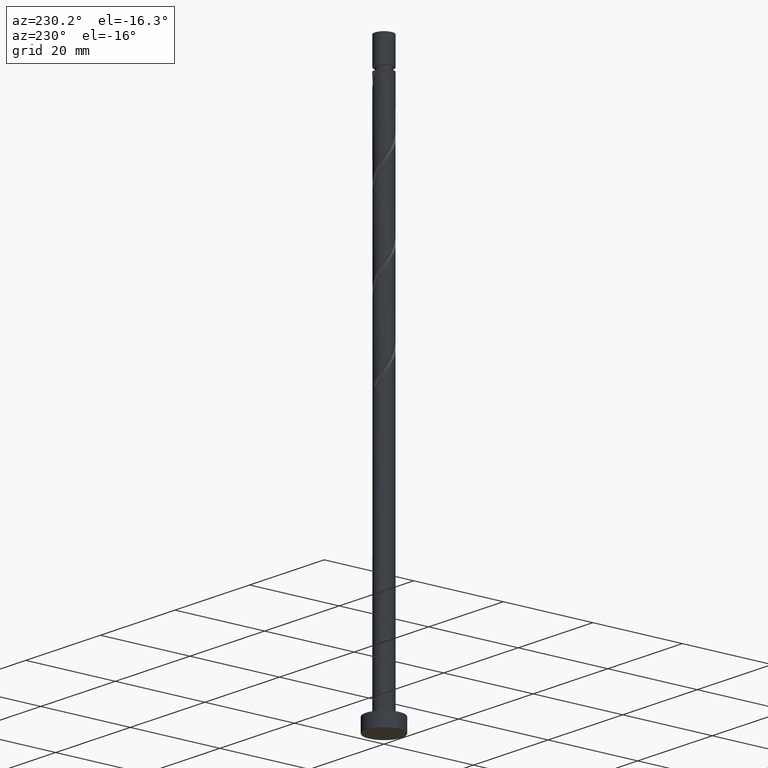
[diagram: clean part render]
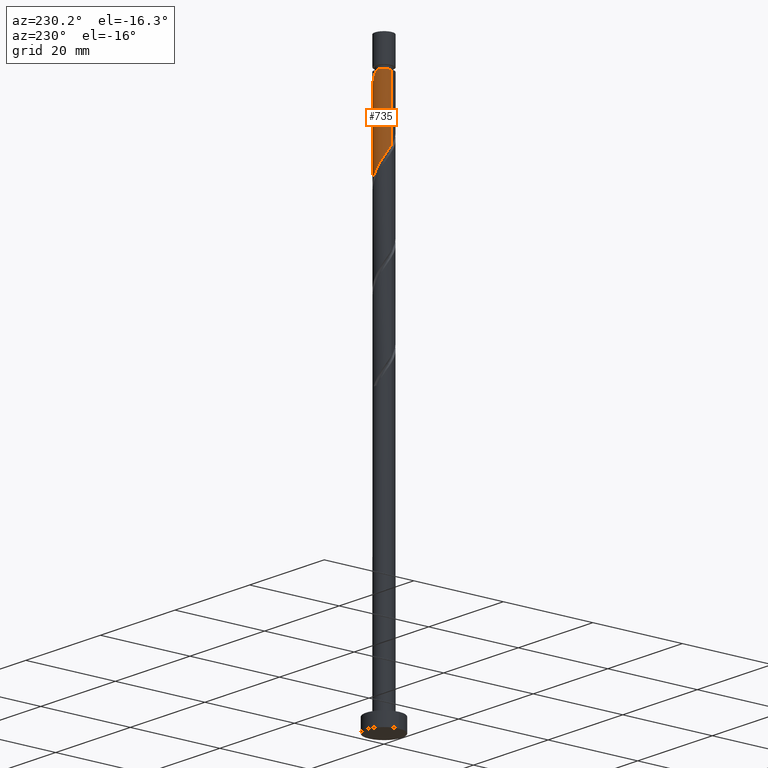
[diagram: same view with one face highlighted and labeled with its STEP entity id]
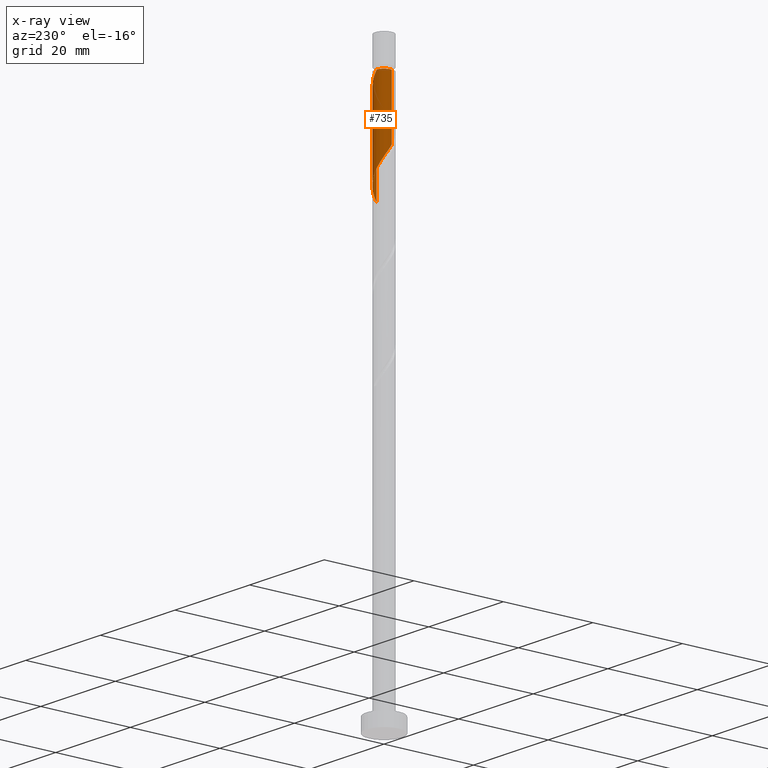
[diagram: x-ray of the same camera — body ghosted, the highlighted face saturated]
A machine part, auxiliary view. The second image highlights one B-rep face of the part: STEP entity #735.
The next image is the same camera in x-ray: the body ghosted, the highlighted face saturated — about 0% of this face is hidden behind the body in this view.
In plain terms, the highlighted cylindrical surface (edge-blend (fillet) strip) has radius 2 mm, axis along (-0, -0, -1).
Its self-contained STEP definition (entity closure, byte-faithful):
#55 = CARTESIAN_POINT ( 'NONE',  ( -1.999999999999999556, -5.097654946289978495E-16, 104.7584045842096003 ) ) ;
#63 = VECTOR ( 'NONE', #172, 1000.000000000000000 ) ;
#84 = CARTESIAN_POINT ( 'NONE',  ( 0.2271575946980709526, 1.987057982840712000, 117.3407565104538435 ) ) ;
#92 = CARTESIAN_POINT ( 'NONE',  ( 2.000000000000001332, 0.2010075630518468603, 113.2753197728667089 ) ) ;
#99 = CARTESIAN_POINT ( 'NONE',  ( -0.3979949748426346856, 1.960000000000000853, 118.2824231771204495 ) ) ;
#139 = AXIS2_PLACEMENT_3D ( 'NONE', #1508, #895, #1230 ) ;
#142 = CARTESIAN_POINT ( 'NONE',  ( 1.474043792816780218, 1.351737732275873238, 97.56575651045380937 ) ) ;
#157 = CARTESIAN_POINT ( 'NONE',  ( -1.741083561036292249, 0.9841890232517239712, 103.2157565104538151 ) ) ;
#163 = EDGE_CURVE ( 'NONE', #1381, #1471, #496, .T. ) ;
#169 = CARTESIAN_POINT ( 'NONE',  ( 1.999999999999999112, 0.1139474748928688552, 95.51305594218626993 ) ) ;
#172 = DIRECTION ( 'NONE',  ( -0.000000000000000000, -0.000000000000000000, -1.000000000000000000 ) ) ;
#215 = VECTOR ( 'NONE', #1367, 1000.000000000000000 ) ;
#261 = CARTESIAN_POINT ( 'NONE',  ( 0.3979949748426495071, 1.959999999999999520, 99.44908984378716355 ) ) ;
#280 = CARTESIAN_POINT ( 'NONE',  ( -1.585203333415016180, 1.259949568624707750, 102.7449231771204836 ) ) ;
#287 = ORIENTED_EDGE ( 'NONE', *, *, #967, .T. ) ;
#288 = CARTESIAN_POINT ( 'NONE',  ( -1.959999999999999520, 0.3979949748426490630, 104.1574231771204779 ) ) ;
#296 = CARTESIAN_POINT ( 'NONE',  ( -0.8300743961697145679, 1.819608885673919207, 101.3324231771204609 ) ) ;
#316 = VERTEX_POINT ( 'NONE', #886 ) ;
#324 = CARTESIAN_POINT ( 'NONE',  ( 1.351737732275876347, 1.474043792816781329, 115.4574231771204893 ) ) ;
#372 = EDGE_CURVE ( 'NONE', #316, #1471, #956, .T. ) ;
#383 = EDGE_LOOP ( 'NONE', ( #1567, #287, #407, #1031, #1463 ) ) ;
#392 = CARTESIAN_POINT ( 'NONE',  ( 1.951079754338987504, 0.5418766612026971741, 96.15325651045380084 ) ) ;
#399 = EDGE_CURVE ( 'NONE', #316, #1138, #515, .T. ) ;
#400 = CARTESIAN_POINT ( 'NONE',  ( 0.08756147180655798890, 2.023036211342430502, 99.91992317712048077 ) ) ;
#407 = ORIENTED_EDGE ( 'NONE', *, *, #802, .F. ) ;
#408 = CARTESIAN_POINT ( 'NONE',  ( 1.688138017008852021, 1.118272131136731184, 97.09492317712046372 ) ) ;
#482 = CARTESIAN_POINT ( 'NONE',  ( 0.000000000000000000, 0.000000000000000000, 125.0000000000000000 ) ) ;
#496 =( BOUNDED_CURVE ( )  B_SPLINE_CURVE ( 2, ( #920, #92, #556, #1051, #1541, #1532, #324, #805, #681, #1175, #84, #1182, #99 ),
 .UNSPECIFIED., .F., .T. ) 
 B_SPLINE_CURVE_WITH_KNOTS ( ( 3, 2, 2, 2, 2, 2, 3 ),
 ( 0.6795322023138553602, 0.6875000000000000000, 0.7000000000000000666, 0.7125000000000001332, 0.7250000000000000888, 0.7375000000000002665, 0.7500000000000002220 ),
 .UNSPECIFIED. ) 
 CURVE ( )  GEOMETRIC_REPRESENTATION_ITEM ( )  RATIONAL_B_SPLINE_CURVE ( ( 0.9039174447099401766, 0.9019565955404696966, 0.9090909090909180534, 0.8978984914501340064, 0.9090909090909180534, 0.8978984914501340064, 0.9090909090909180534, 0.8978984914501340064, 0.9090909090909180534, 0.8978984914501340064, 0.9090909090909180534, 0.8978984914501338954, 0.9090909090909181645 ) ) 
 REPRESENTATION_ITEM ( '' )  );
#515 = LINE ( 'NONE', #765, #63 ) ;
#552 = CARTESIAN_POINT ( 'NONE',  ( 1.999999999999999556, 2.009075772949579986E-15, 95.34173791754292893 ) ) ;
#556 = CARTESIAN_POINT ( 'NONE',  ( 1.960000000000002629, 0.3979949748426488410, 113.5740898437871493 ) ) ;
#612 = DIRECTION ( 'NONE',  ( -0.000000000000000000, -0.000000000000000000, -1.000000000000000000 ) ) ;
#626 = CARTESIAN_POINT ( 'NONE',  ( -1.896963788657569427, 0.7084284778787400816, 103.6865898437871465 ) ) ;
#634 = CARTESIAN_POINT ( 'NONE',  ( -1.999999999999999556, 0.2010075630518427248, 104.4561932480409041 ) ) ;
#640 = CARTESIAN_POINT ( 'NONE',  ( 1.987057982840708892, 0.2271575946980694816, 95.68242317712046940 ) ) ;
#663 = VERTEX_POINT ( 'NONE', #552 ) ;
#681 = CARTESIAN_POINT ( 'NONE',  ( 0.8300743961697165663, 1.819608885673922094, 116.3990898437871380 ) ) ;
#704 = CARTESIAN_POINT ( 'NONE',  ( 2.000000000000002665, 1.499310278320571585E-15, 112.9731084366980269 ) ) ;
#735 = ADVANCED_FACE ( 'NONE', ( #1071 ), #984, .T. ) ;
#736 = CARTESIAN_POINT ( 'NONE',  ( -1.999999999999999556, -5.097654946289978495E-16, 104.7584045842096003 ) ) ;
#746 = CARTESIAN_POINT ( 'NONE',  ( 1.819608885673919429, 0.8300743961697141238, 96.62408984378713228 ) ) ;
#755 = CARTESIAN_POINT ( 'NONE',  ( -0.5418766612026972851, 1.951079754338987282, 100.8615898437871579 ) ) ;
#762 = CARTESIAN_POINT ( 'NONE',  ( 1.999999999999999556, 2.009075772949579591E-15, 95.34173791754292893 ) ) ;
#765 = CARTESIAN_POINT ( 'NONE',  ( -2.000000000000000000, 0.000000000000000000, 125.0000000000000000 ) ) ;
#773 = LINE ( 'NONE', #1023, #215 ) ;
#802 = EDGE_CURVE ( 'NONE', #1138, #663, #878, .T. ) ;
#805 = CARTESIAN_POINT ( 'NONE',  ( 1.118272131136733405, 1.688138017008854019, 115.9282565104537923 ) ) ;
#835 = DIRECTION ( 'NONE',  ( -1.000000000000000000, 0.000000000000000000, 0.000000000000000000 ) ) ;
#875 = AXIS2_PLACEMENT_3D ( 'NONE', #482, #612, #835 ) ;
#878 =( BOUNDED_CURVE ( )  B_SPLINE_CURVE ( 2, ( #736, #634, #288, #626, #157, #280, #1139, #1375, #296, #755, #1006, #400, #261, #1359, #1252, #1227, #142, #408, #746, #392, #640, #169, #762 ),
 .UNSPECIFIED., .F., .T. ) 
 B_SPLINE_CURVE_WITH_KNOTS ( ( 3, 2, 2, 2, 2, 2, 2, 2, 2, 2, 2, 3 ),
 ( 0.4295322023138551382, 0.4375000000000000000, 0.4500000000000000111, 0.4625000000000000222, 0.4749999999999999778, 0.4874999999999999889, 0.5000000000000000000, 0.5124999999999999556, 0.5250000000000000222, 0.5374999999999999778, 0.5500000000000000444, 0.5545322023138550271 ),
 .UNSPECIFIED. ) 
 CURVE ( )  GEOMETRIC_REPRESENTATION_ITEM ( )  RATIONAL_B_SPLINE_CURVE ( ( 0.9039174447099341814, 0.9019565955404633684, 0.9090909090909118362, 0.8978984914501279002, 0.9090909090909118362, 0.8978984914501279002, 0.9090909090909118362, 0.8978984914501279002, 0.9090909090909118362, 0.8978984914501279002, 0.9090909090909118362, 0.8978984914501279002, 0.9090909090909118362, 0.8978984914501279002, 0.9090909090909118362, 0.8978984914501279002, 0.9090909090909118362, 0.8978984914501279002, 0.9090909090909118362, 0.8978984914501279002, 0.9090909090909118362, 0.9050328050005764791, 0.9039174447099341814 ) ) 
 REPRESENTATION_ITEM ( '' )  );
#886 = CARTESIAN_POINT ( 'NONE',  ( -1.999999999999998224, 0.000000000000000000, 118.2824231771204637 ) ) ;
#895 = DIRECTION ( 'NONE',  ( -0.000000000000000000, -0.000000000000000000, -1.000000000000000000 ) ) ;
#920 = CARTESIAN_POINT ( 'NONE',  ( 2.000000000000002665, 1.499310278320571585E-15, 112.9731084366980269 ) ) ;
#956 = CIRCLE ( 'NONE', #139, 1.999999999999998224 ) ;
#967 = EDGE_CURVE ( 'NONE', #1381, #663, #773, .T. ) ;
#980 = CARTESIAN_POINT ( 'NONE',  ( -0.3979949748426346856, 1.960000000000000853, 118.2824231771204495 ) ) ;
#984 = CYLINDRICAL_SURFACE ( 'NONE', #875, 2.000000000000000000 ) ;
#1006 = CARTESIAN_POINT ( 'NONE',  ( -0.2271575946980697869, 1.987057982840708892, 100.3907565104538122 ) ) ;
#1023 = CARTESIAN_POINT ( 'NONE',  ( 2.000000000000000000, 2.449293598294705921E-16, 125.0000000000000000 ) ) ;
#1031 = ORIENTED_EDGE ( 'NONE', *, *, #399, .F. ) ;
#1051 = CARTESIAN_POINT ( 'NONE',  ( 1.896963788657571426, 0.7084284778787407477, 114.0449231771204808 ) ) ;
#1071 = FACE_OUTER_BOUND ( 'NONE', #383, .T. ) ;
#1138 = VERTEX_POINT ( 'NONE', #55 ) ;
#1139 = CARTESIAN_POINT ( 'NONE',  ( -1.351737732275873904, 1.474043792816779774, 102.2740898437871806 ) ) ;
#1175 = CARTESIAN_POINT ( 'NONE',  ( 0.5418766612026988394, 1.951079754338989725, 116.8699231771204552 ) ) ;
#1182 = CARTESIAN_POINT ( 'NONE',  ( -0.08756147180656283224, 2.023036211342433610, 117.8115898437871181 ) ) ;
#1227 = CARTESIAN_POINT ( 'NONE',  ( 1.259949568624707972, 1.585203333415015958, 98.03658984378714081 ) ) ;
#1230 = DIRECTION ( 'NONE',  ( -1.000000000000000000, 0.000000000000000000, 0.000000000000000000 ) ) ;
#1252 = CARTESIAN_POINT ( 'NONE',  ( 0.9841890232517244153, 1.741083561036292027, 98.50742317712050067 ) ) ;
#1359 = CARTESIAN_POINT ( 'NONE',  ( 0.7084284778787406367, 1.896963788657568983, 98.97825651045383211 ) ) ;
#1367 = DIRECTION ( 'NONE',  ( -0.000000000000000000, -0.000000000000000000, -1.000000000000000000 ) ) ;
#1375 = CARTESIAN_POINT ( 'NONE',  ( -1.118272131136731629, 1.688138017008852021, 101.8032565104538207 ) ) ;
#1381 = VERTEX_POINT ( 'NONE', #704 ) ;
#1463 = ORIENTED_EDGE ( 'NONE', *, *, #372, .T. ) ;
#1471 = VERTEX_POINT ( 'NONE', #980 ) ;
#1508 = CARTESIAN_POINT ( 'NONE',  ( 0.000000000000000000, 0.000000000000000000, 118.2824231771204637 ) ) ;
#1532 = CARTESIAN_POINT ( 'NONE',  ( 1.585203333415019289, 1.259949568624708638, 114.9865898437871294 ) ) ;
#1541 = CARTESIAN_POINT ( 'NONE',  ( 1.741083561036295801, 0.9841890232517246373, 114.5157565104537838 ) ) ;
#1567 = ORIENTED_EDGE ( 'NONE', *, *, #163, .F. ) ;